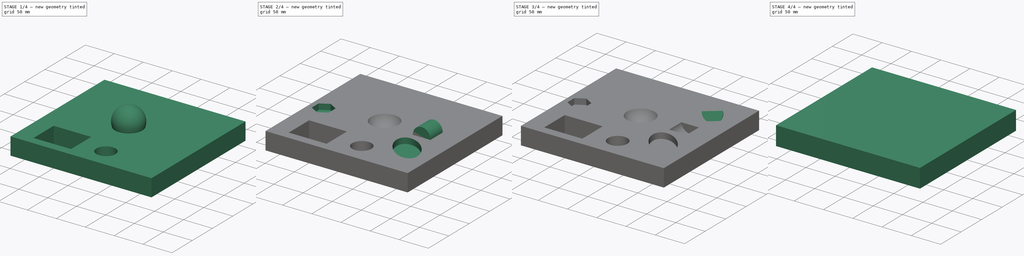
[diagram: build sequence overview — one tinted view per stage of 4, left to right]
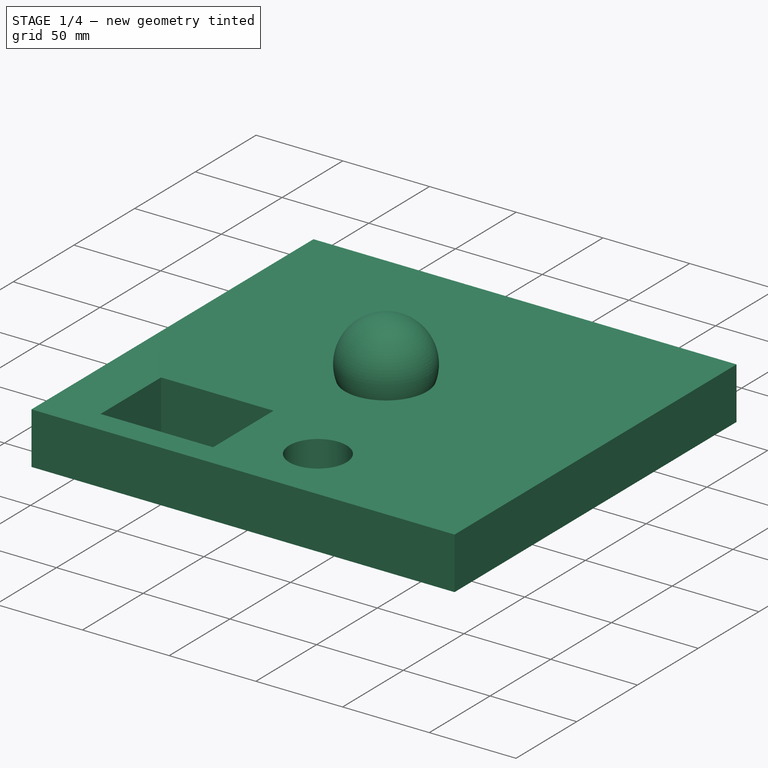
[diagram: stage 1 of 4 — iso view after this stage's code; geometry added in this stage tinted green]
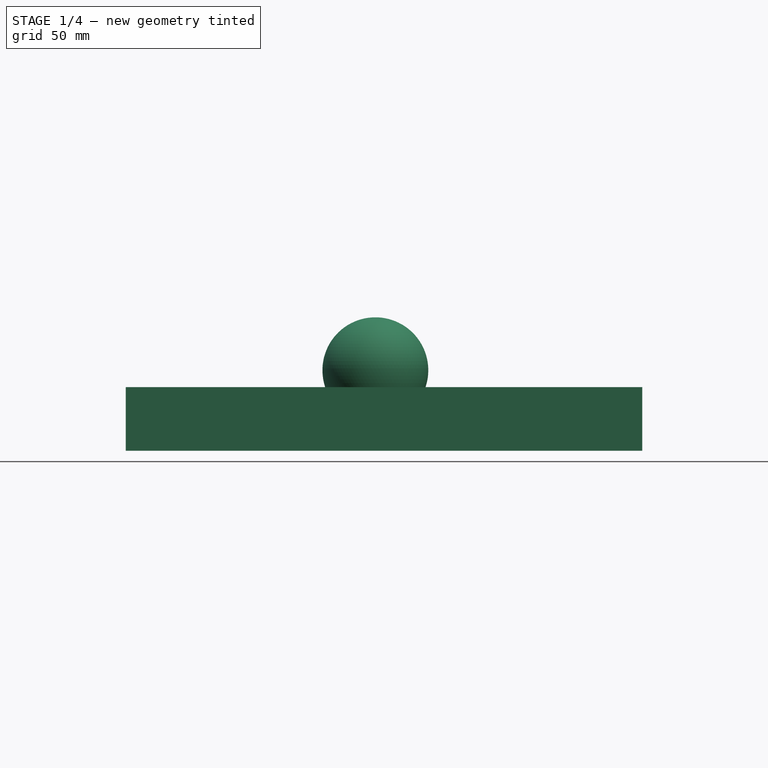
[diagram: stage 1 of 4 — front view after this stage's code; geometry added in this stage tinted green]
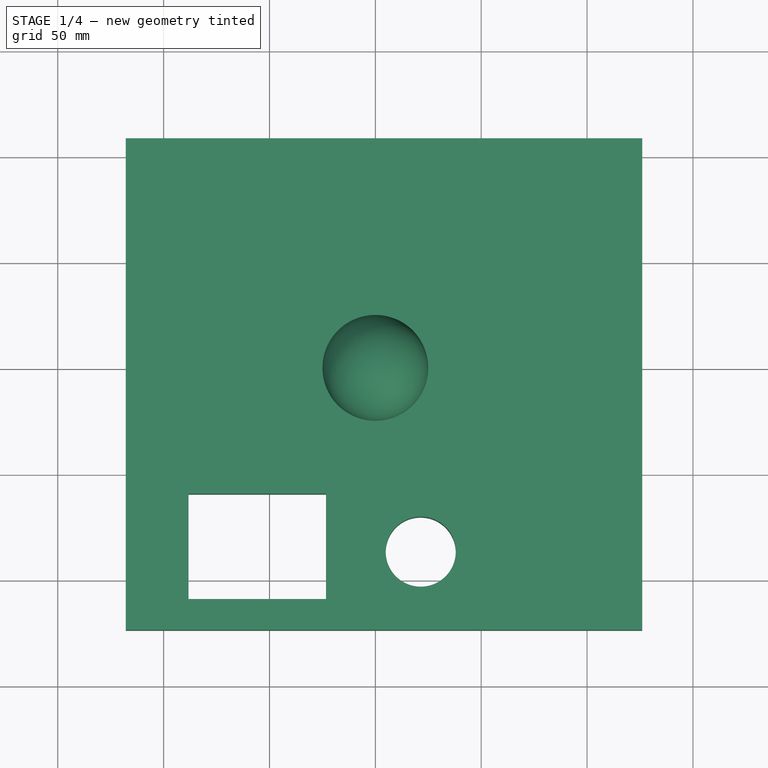
[diagram: stage 1 of 4 — top view after this stage's code; geometry added in this stage tinted green]
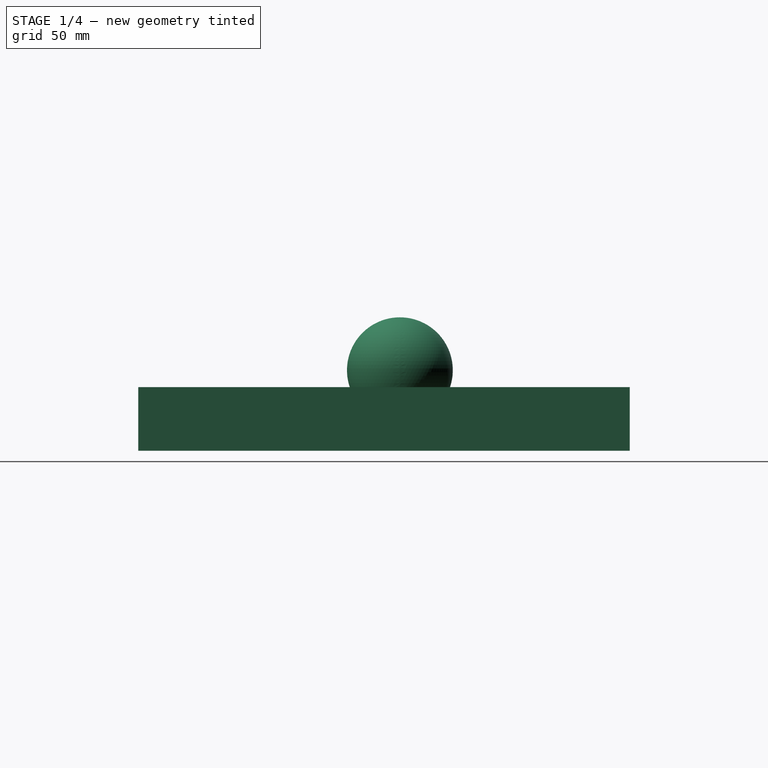
[diagram: stage 1 of 4 — right view after this stage's code; geometry added in this stage tinted green]
FCSTD DOCUMENT  (FreeCAD 0.18R15398 (Git))
Label: oddpockets
License: All rights reserved
LicenseURL: http://en.wikipedia.org/wiki/All_rights_reserved
objects: Part::Cut×3, Sketcher::SketchObject×2, Part::Cylinder×2, Part::FeaturePython×2, Path::FeaturePython×2, PartDesign::Pad×1, PartDesign::Pocket×1, PartDesign::Body×1, Part::Sphere×1, Part::Part2DObjectPython×1, Path::FeatureCompoundPython×1, App::FeaturePython×1, App::DocumentObjectGroup×1
note: 16 computed .brp shape members not serialized (recipe doc carries the construction recipe); baked Part::Feature solids carry a one-line shape summary decoded from their .brp

FEATURE [Sketcher::SketchObject] Sketch
  MapMode = 5
  Support = -> [XY_Plane]
  sketch-geometry (9):
    g0: LineSegment StartX=-117.882 StartY=108.591 StartZ=0 EndX=126.061 EndY=108.591 EndZ=0
    g1: LineSegment StartX=126.061 StartY=108.591 StartZ=0 EndX=126.061 EndY=-123.603 EndZ=0
    g2: LineSegment StartX=126.061 StartY=-123.603 StartZ=0 EndX=-117.882 EndY=-123.603 EndZ=0
    g3: LineSegment StartX=-117.882 StartY=-123.603 StartZ=0 EndX=-117.882 EndY=108.591 EndZ=0
    g4: LineSegment StartX=-88.2288 StartY=-59.2599 StartZ=0 EndX=-23.3264 EndY=-59.2599 EndZ=0
    g5: LineSegment StartX=-23.3264 StartY=-59.2599 StartZ=0 EndX=-23.3264 EndY=-109.056 EndZ=0
    g6: LineSegment StartX=-23.3264 StartY=-109.056 StartZ=0 EndX=-88.2288 EndY=-109.056 EndZ=0
    g7: LineSegment StartX=-88.2288 StartY=-109.056 StartZ=0 EndX=-88.2288 EndY=-59.2599 EndZ=0
    g8: Circle CenterX=21.4339 CenterY=-86.6756 CenterZ=0 NormalX=0 NormalY=0 NormalZ=1 AngleXU=0 Radius=16.5314
  constraints (16):
    c: Coincident(g0,g1)
    c: Coincident(g1,g2)
    c: Coincident(g2,g3)
    c: Coincident(g3,g0)
    c: Horizontal(g0)
    c: Horizontal(g2)
    c: Vertical(g1)
    c: Vertical(g3)
    c: Coincident(g4,g5)
    c: Coincident(g5,g6)
    c: Coincident(g6,g7)
    c: Coincident(g7,g4)
    c: Horizontal(g4)
    c: Horizontal(g6)
    c: Vertical(g5)
    c: Vertical(g7)
FEATURE [PartDesign::Pad] Pad
  Length = 30
  Length2 = 100
  Profile = -> Sketch
  Type = 0
FEATURE [PartDesign::Body] Body
  Group = -> [Sketch,Pad,Sketch001,Pocket]
  Origin = -> BodyOrigin
  Tip = -> Pocket
FEATURE [Part::Sphere] Sphere
  Angle1 = -90
  Angle2 = 90
  Angle3 = 360
  AttacherType = Attacher::AttachEngine3D
  Placement = pos=(0,0,38) rot=(0,0,1;0rad)
  Radius = 25
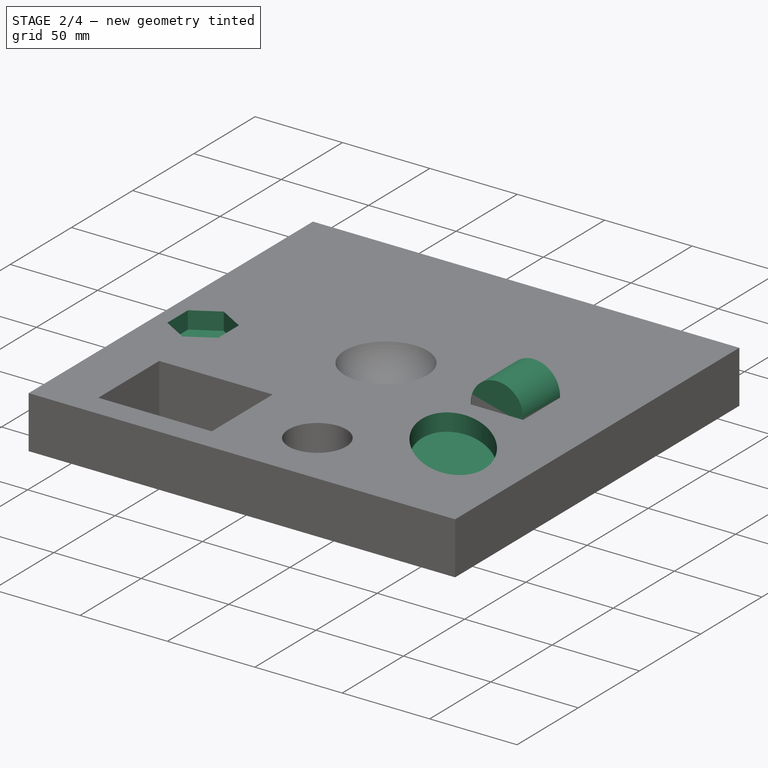
[diagram: stage 2 of 4 — iso view after this stage's code; geometry added in this stage tinted green]
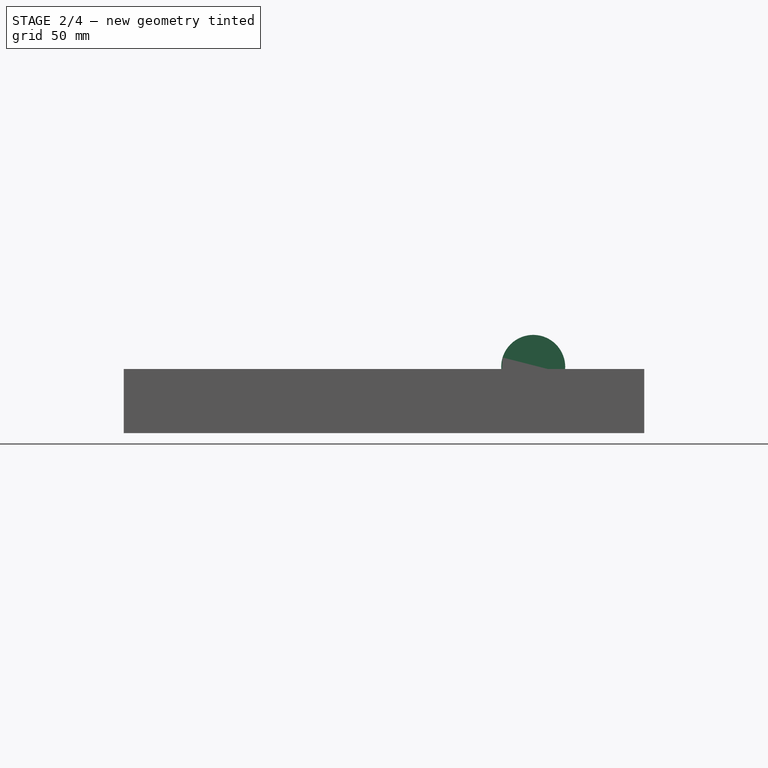
[diagram: stage 2 of 4 — front view after this stage's code; geometry added in this stage tinted green]
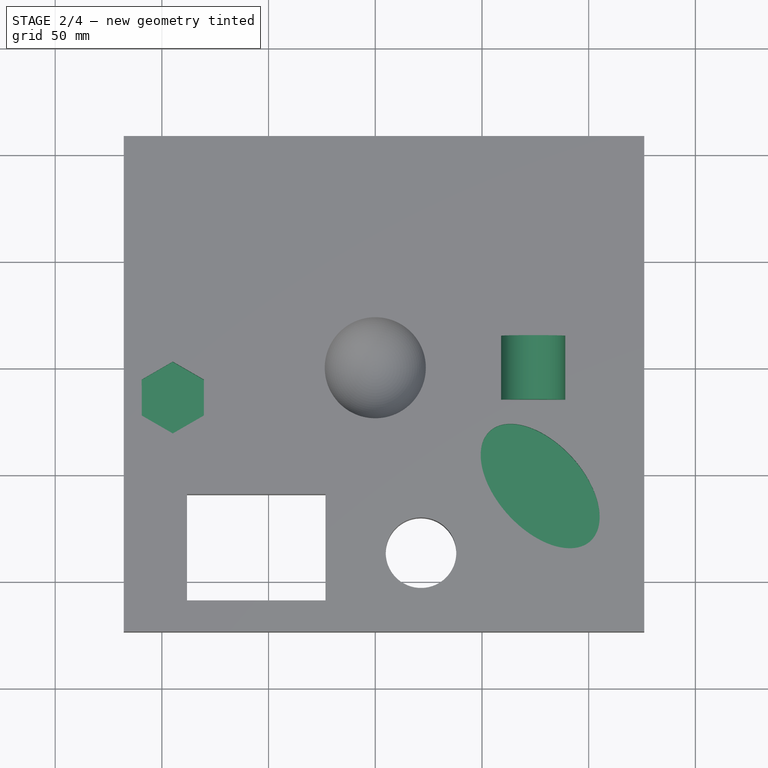
[diagram: stage 2 of 4 — top view after this stage's code; geometry added in this stage tinted green]
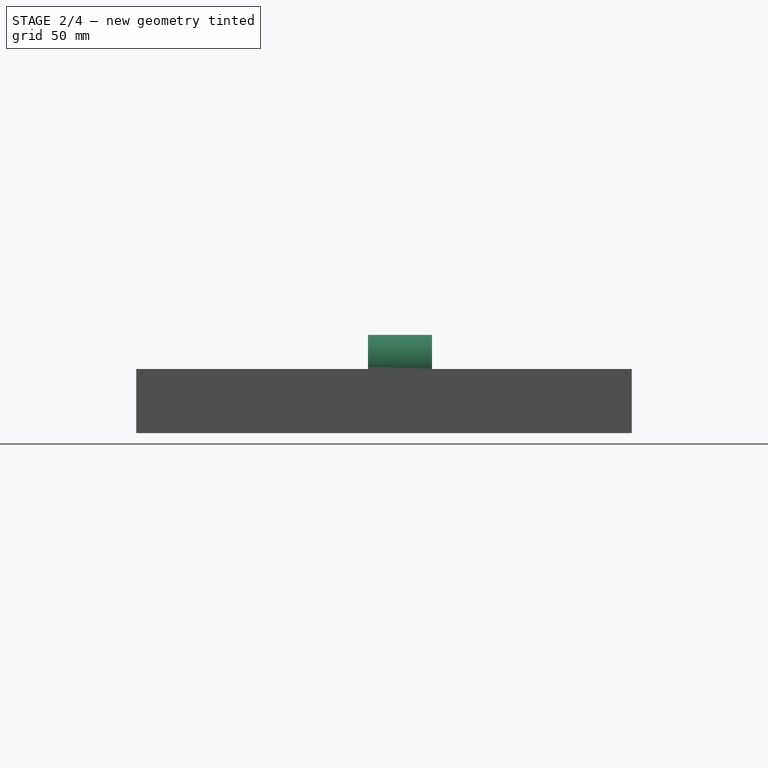
[diagram: stage 2 of 4 — right view after this stage's code; geometry added in this stage tinted green]
FEATURE [Sketcher::SketchObject] Sketch001
  MapMode = 5
  Placement = pos=(0,0,30) rot=(0,0,1;0rad)
  Support = -> [Pad]
  sketch-geometry (12):
    g0: LineSegment StartX=-80.2996 StartY=-22.365 StartZ=0 EndX=-80.3049 EndY=-5.53393 EndZ=0
    g1: LineSegment StartX=-80.3049 StartY=-5.53393 StartZ=0 EndX=-94.8838 EndY=2.87691 EndZ=0
    g2: LineSegment StartX=-94.8838 StartY=2.87691 StartZ=0 EndX=-109.457 EndY=-5.54328 EndZ=0
    g3: LineSegment StartX=-109.457 StartY=-5.54328 StartZ=0 EndX=-109.452 EndY=-22.3743 EndZ=0
    g4: LineSegment StartX=-109.452 StartY=-22.3743 StartZ=0 EndX=-94.873 EndY=-30.7852 EndZ=0
    g5: LineSegment StartX=-94.873 StartY=-30.7852 StartZ=0 EndX=-80.2996 EndY=-22.365 EndZ=0
    g6: Circle [constr] CenterX=-94.8784 CenterY=-13.9541 CenterZ=0 NormalX=0 NormalY=0 NormalZ=1 AngleXU=0 Radius=16.831
    g7: Ellipse CenterX=77.2637 CenterY=-55.4476 CenterZ=0 NormalX=0 NormalY=0 NormalZ=1 MajorRadius=34.9272 MinorRadius=20.1642 AngleXU=-0.830822
    g8: LineSegment [constr] StartX=100.814 StartY=-81.2409 StartZ=0 EndX=53.7133 EndY=-29.6544 EndZ=0
    g9: LineSegment [constr] StartX=92.1546 StartY=-41.8516 StartZ=0 EndX=62.3727 EndY=-69.0437 EndZ=0
    g10: GeomPoint [constr] X=96.493 Y=-76.5083 Z=0
    g11: GeomPoint [constr] X=58.0344 Y=-34.387 Z=0
  constraints (14):
    c: Coincident(g0,g1)
    c: Coincident(g1,g2)
    c: Coincident(g2,g3)
    c: Coincident(g3,g4)
    c: Coincident(g4,g5)
    c: Coincident(g5,g0)
    c: Equal(g0, g1-g5) x5
    c: PointOnObject(g0,g6)
    c: PointOnObject(g1,g6)
    c: PointOnObject(g2,g6)
    c: PointOnObject(g3,g6)
    c: PointOnObject(g4,g6)
    c: PointOnObject(g5,g6)
    c: InternalAlignment(g8-g11 -> g7) x4
FEATURE [PartDesign::Pocket] Pocket
  BaseFeature = -> Pad
  Length = 10
  Length2 = 100
  Profile = -> Sketch001
  Type = 0
FEATURE [Part::Cylinder] Cylinder
  Angle = 360
  AttacherType = Attacher::AttachEngine3D
  Height = 30
  Placement = pos=(74,15,31) rot=(1,0,0;1.5708rad)
  Radius = 15
FEATURE [Part::Cut] Cut
  Base = -> Body
  Tool = -> Sphere
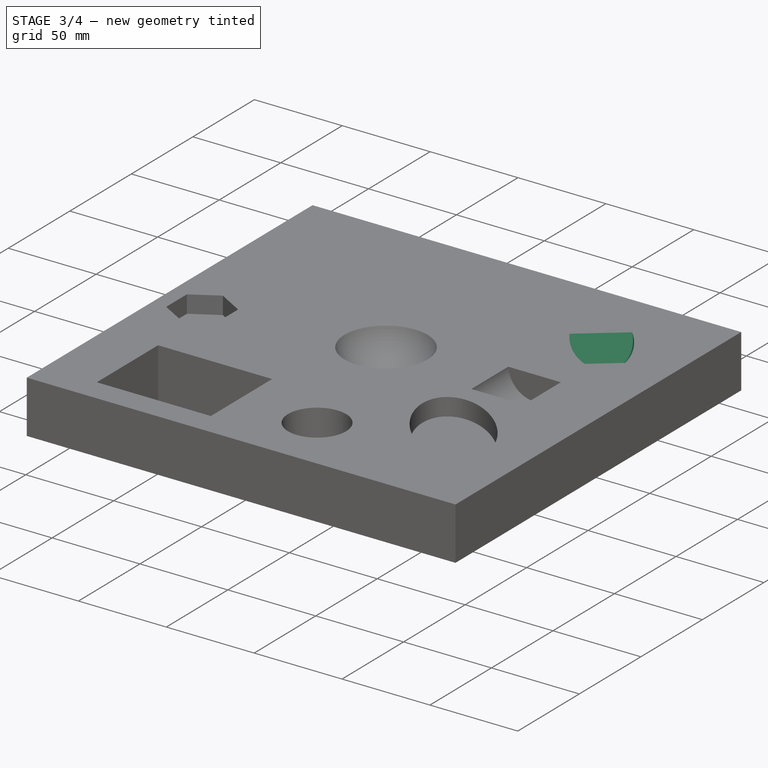
[diagram: stage 3 of 4 — iso view after this stage's code; geometry added in this stage tinted green]
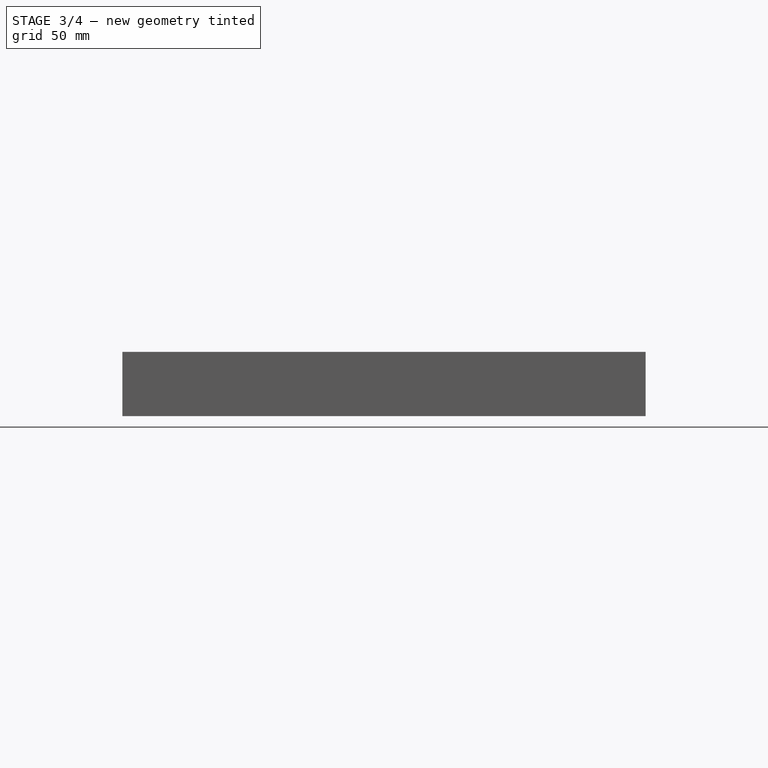
[diagram: stage 3 of 4 — front view after this stage's code; geometry added in this stage tinted green]
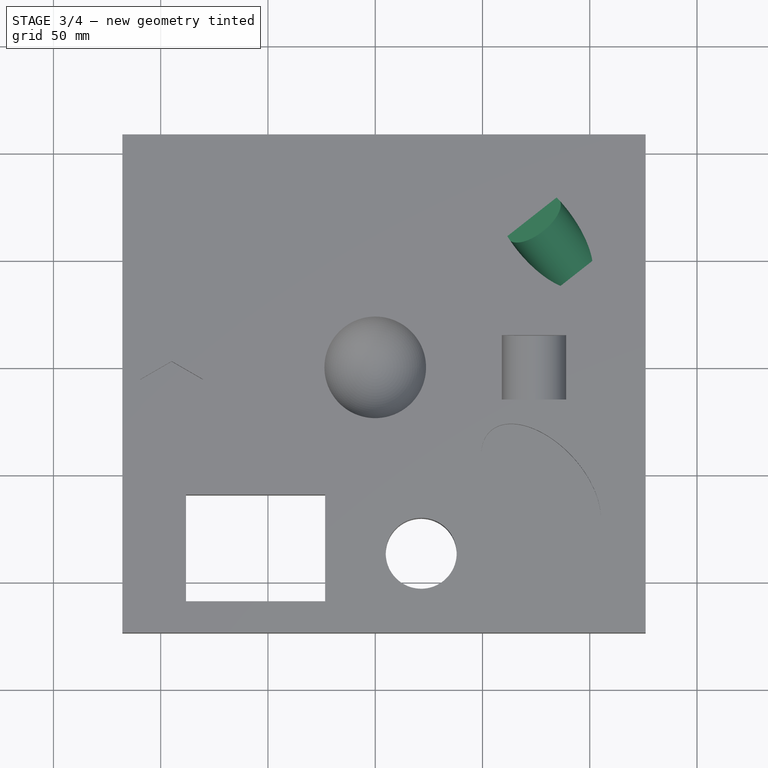
[diagram: stage 3 of 4 — top view after this stage's code; geometry added in this stage tinted green]
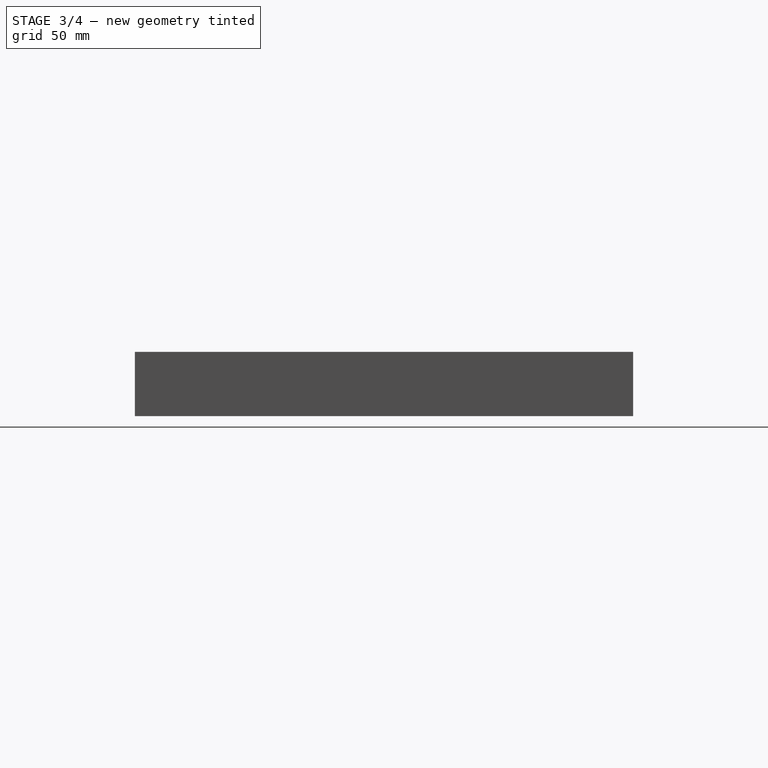
[diagram: stage 3 of 4 — right view after this stage's code; geometry added in this stage tinted green]
FEATURE [Part::Cylinder] Cylinder001
  Angle = 360
  AttacherType = Attacher::AttachEngine3D
  Height = 30
  Placement = pos=(74,69,27) rot=(0.707107,0,0.707107;1.67552rad)
  Radius = 15
FEATURE [Part::Cut] Cut001
  Base = -> Cut
  Tool = -> Cylinder
FEATURE [Part::Cut] Cut002
  Base = -> Cut001
  Tool = -> Cylinder001
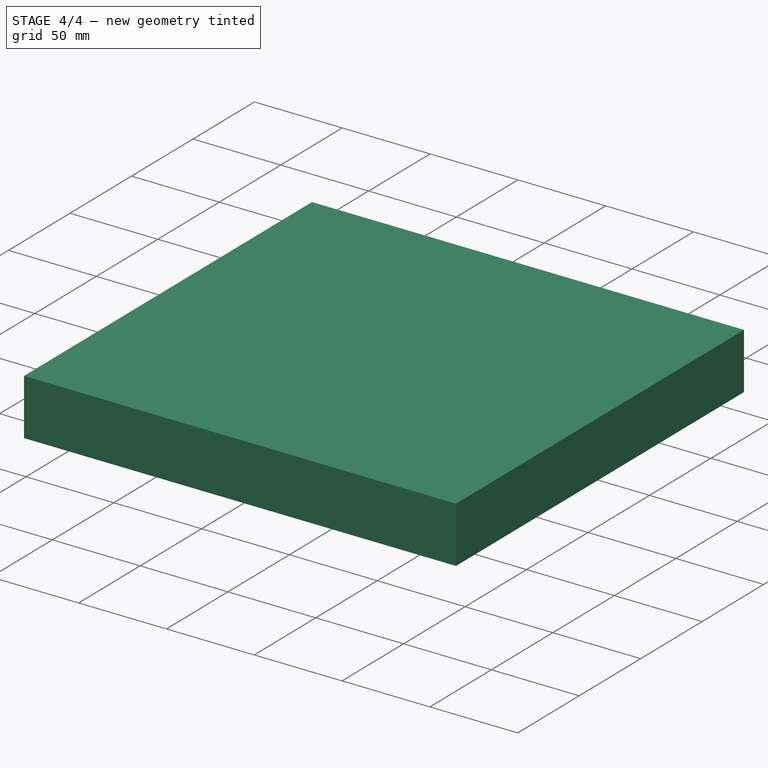
[diagram: stage 4 of 4 — iso view after this stage's code; geometry added in this stage tinted green]
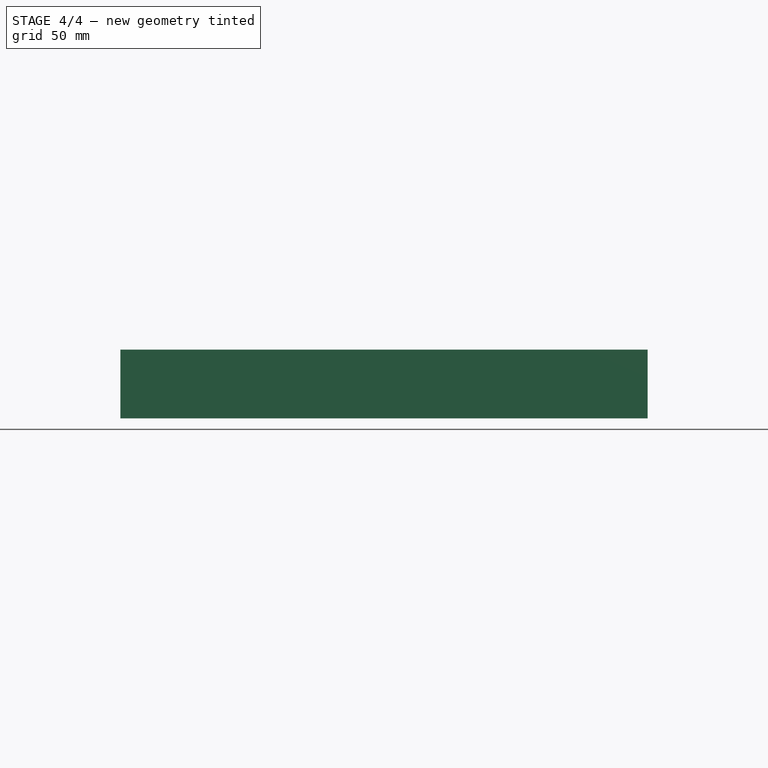
[diagram: stage 4 of 4 — front view after this stage's code; geometry added in this stage tinted green]
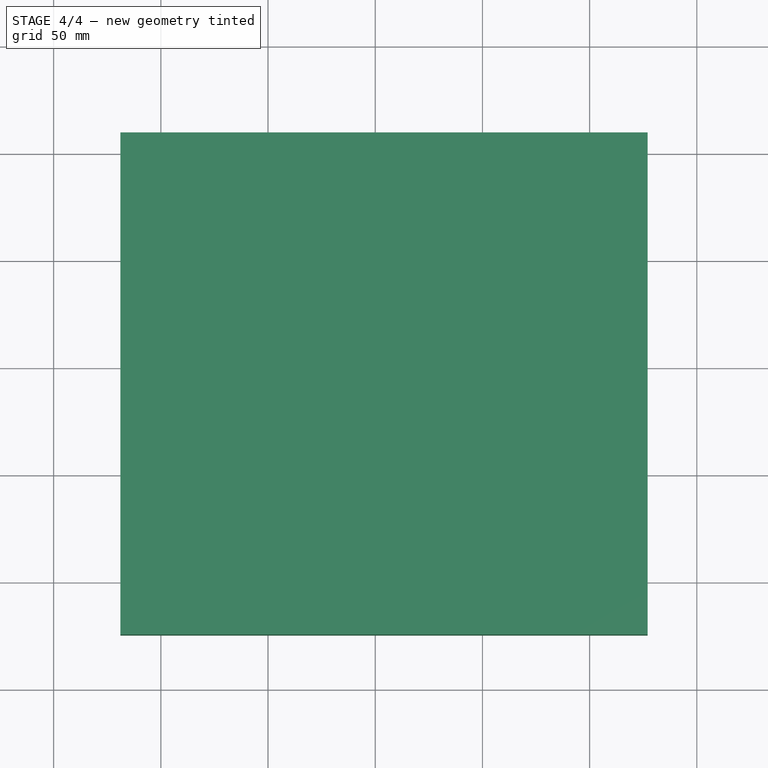
[diagram: stage 4 of 4 — top view after this stage's code; geometry added in this stage tinted green]
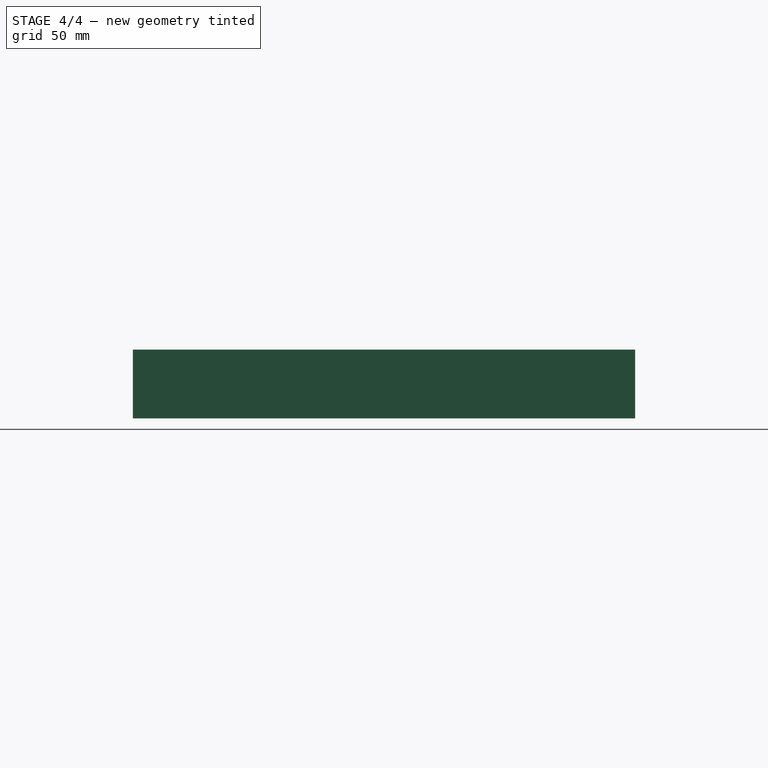
[diagram: stage 4 of 4 — right view after this stage's code; geometry added in this stage tinted green]
FEATURE [Part::Part2DObjectPython] ShapeString  # Draft 2D object (typed FeaturePython)
  FontFile = <path>
  Placement = pos=(-2.21311,-6.68731,14.0423) rot=(0,0,1;0rad)
  Size = 5
  String = This is a bit of engraveable text
  Support = -> [Cut002]
  Tracking = 0
FEATURE [Path::FeatureCompoundPython] Operations  # Path/CAM operation (typed FeaturePython)
  UsePlacements = false
FEATURE [App::FeaturePython] SetupSheet  # Path/CAM operation (typed FeaturePython)
  ClearanceHeightExpression = OpStockZMax+SetupSheet.ClearanceHeightOffset
  ClearanceHeightOffset = 5.08
  FinalDepthExpression = OpFinalDepth
  HorizRapid = 0
  SafeHeightExpression = OpStockZMax+SetupSheet.SafeHeightOffset
  SafeHeightOffset = 3.048
  StartDepthExpression = OpStartDepth
  StepDownExpression = OpToolDiameter
  VertRapid = 0
FEATURE [Part::FeaturePython] Clone  label="Model-Cut002"  # Draft clone (typed FeaturePython)
  AttacherType = Attacher::AttachEngine3D
  Fuse = false
  Objects = -> [Cut002]
  PathResource = Model
  Scale = (1,1,1)
FEATURE [App::DocumentObjectGroup] Model
  Group = -> [Clone]
FEATURE [Path::FeaturePython] Default_Tool  label="Default Tool"  # Path/CAM operation (typed FeaturePython)
  HorizFeed = 0
  HorizRapid = 0
  SpindleDir = 0
  SpindleSpeed = 0
  ToolNumber = 1
  VertFeed = 0
  VertRapid = 0
  expr: HorizRapid = SetupSheet.HorizRapid
  expr: VertRapid = SetupSheet.VertRapid
FEATURE [Part::FeaturePython] Stock  # WARN: FeaturePython — macro-defined, semantics opaque (R4)
  Base = -> Model
  ExtXneg = 1.016
  ExtXpos = 1.016
  ExtYneg = 1.016
  ExtYpos = 1.016
  ExtZneg = 1.016
  ExtZpos = 1.016
  Placement = pos=(-117.882,-123.603,0) rot=(0,0,1;0rad)
  StockType = FromBase
FEATURE [Path::FeaturePython] Job  # Path/CAM operation (typed FeaturePython)
  GeometryTolerance = 0
  Model = -> Model
  Operations = -> Operations
  PostProcessor = 1
  SetupSheet = -> SetupSheet
  Stock = -> Stock
  ToolController = -> [Default_Tool]
note: 1 file-system path scrubbed to <path> (originals preserved in the JSON sidecar)
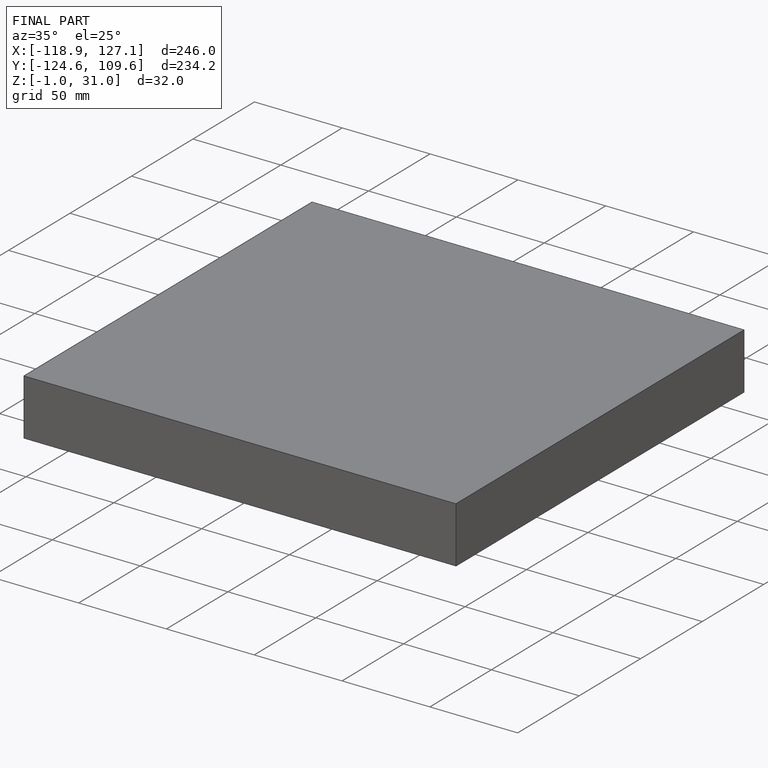
[diagram: finished part — iso view with bounding-box wireframe]
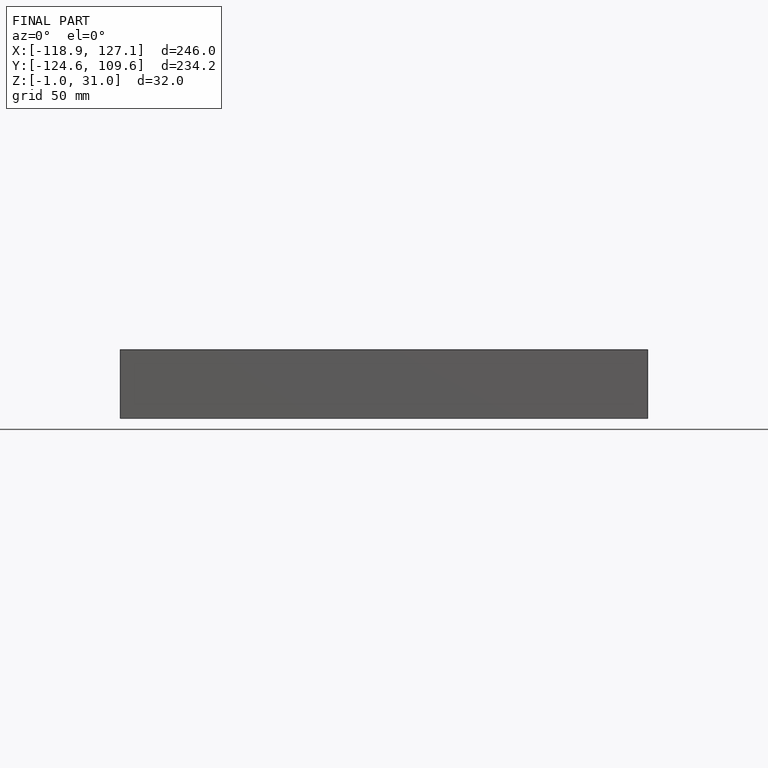
[diagram: finished part — front view with bounding-box wireframe]
